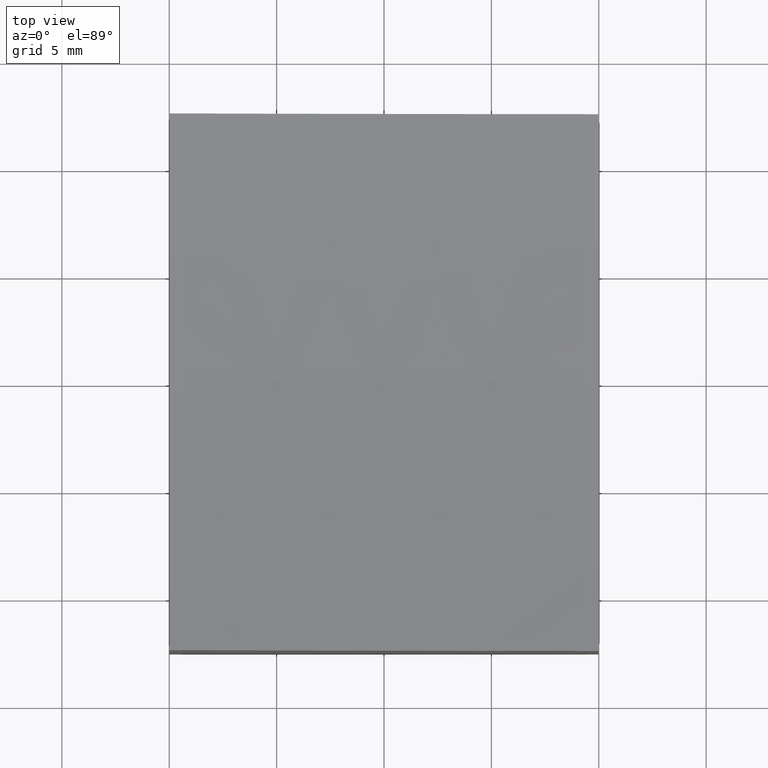
[diagram: clean part render]
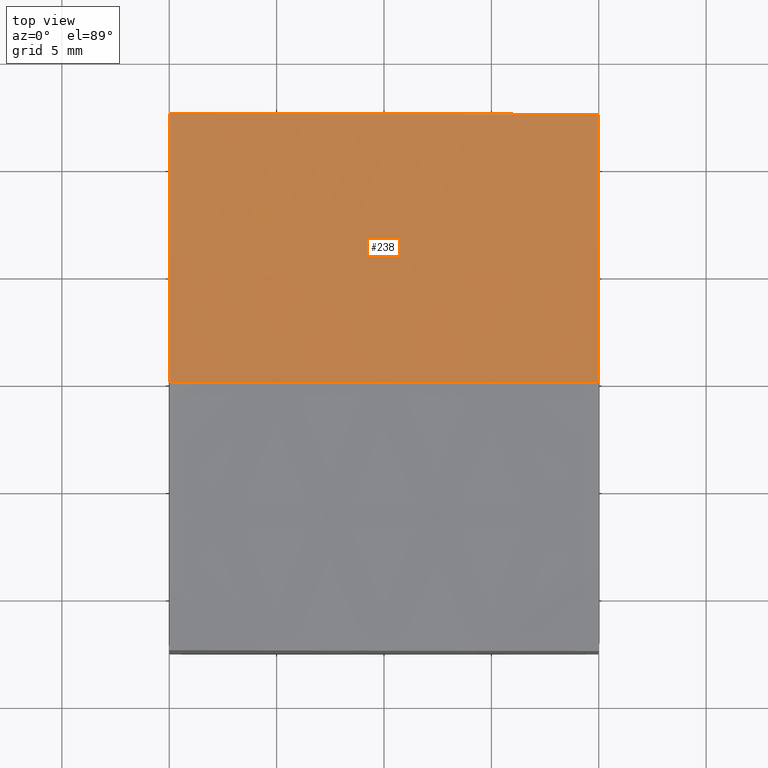
[diagram: same view with one face highlighted and labeled with its STEP entity id]
A machine part, top view. The second image highlights one B-rep face of the part: STEP entity #238.
In plain terms, the highlighted spherical surface has radius 150 mm.
Its self-contained STEP definition (entity closure, byte-faithful):
#15 = DIRECTION ( 'NONE',  ( 1.734723475976807094E-16, -1.000000000000000000, 0.000000000000000000 ) ) ;
#26 = EDGE_LOOP ( 'NONE', ( #246, #91, #72, #104 ) ) ;
#29 = AXIS2_PLACEMENT_3D ( 'NONE', #118, #143, #206 ) ;
#31 = VERTEX_POINT ( 'NONE', #200 ) ;
#33 = CARTESIAN_POINT ( 'NONE',  ( 10.00000000000000178, 0.000000000000000000, 149.0000000000000000 ) ) ;
#39 = DIRECTION ( 'NONE',  ( 0.000000000000000000, 0.000000000000000000, -1.000000000000000000 ) ) ;
#57 = CARTESIAN_POINT ( 'NONE',  ( 10.00000000000000178, 12.50000000000000000, -0.3946116832866386481 ) ) ;
#59 = CARTESIAN_POINT ( 'NONE',  ( -9.999999999999998224, 0.000000000000000000, 149.0000000000000000 ) ) ;
#72 = ORIENTED_EDGE ( 'NONE', *, *, #148, .F. ) ;
#80 = FACE_OUTER_BOUND ( 'NONE', #26, .T. ) ;
#91 = ORIENTED_EDGE ( 'NONE', *, *, #194, .T. ) ;
#96 = AXIS2_PLACEMENT_3D ( 'NONE', #59, #146, #39 ) ;
#103 = EDGE_CURVE ( 'NONE', #174, #176, #191, .T. ) ;
#104 = ORIENTED_EDGE ( 'NONE', *, *, #103, .F. ) ;
#107 = AXIS2_PLACEMENT_3D ( 'NONE', #183, #15, #249 ) ;
#118 = CARTESIAN_POINT ( 'NONE',  ( 15.00000000000001954, 0.000000000000000000, 149.0000000000000000 ) ) ;
#128 = AXIS2_PLACEMENT_3D ( 'NONE', #33, #210, #165 ) ;
#139 = CARTESIAN_POINT ( 'NONE',  ( 15.00000000000001954, 0.000000000000000000, 149.0000000000000000 ) ) ;
#143 = DIRECTION ( 'NONE',  ( 0.000000000000000000, -1.000000000000000000, 0.000000000000000000 ) ) ;
#146 = DIRECTION ( 'NONE',  ( 1.000000000000000000, 0.000000000000000000, 0.000000000000000000 ) ) ;
#148 = EDGE_CURVE ( 'NONE', #176, #31, #190, .T. ) ;
#149 = CIRCLE ( 'NONE', #29, 150.0000000000000284 ) ;
#161 = CARTESIAN_POINT ( 'NONE',  ( -9.999999999999996447, 12.49999999999999645, 1.627173468105036491 ) ) ;
#165 = DIRECTION ( 'NONE',  ( 0.000000000000000000, 0.000000000000000000, 1.000000000000000000 ) ) ;
#166 = DIRECTION ( 'NONE',  ( 0.000000000000000000, 1.000000000000000000, -0.000000000000000000 ) ) ;
#174 = VERTEX_POINT ( 'NONE', #161 ) ;
#176 = VERTEX_POINT ( 'NONE', #57 ) ;
#183 = CARTESIAN_POINT ( 'NONE',  ( 15.00000000000001776, 12.50000000000000178, 149.0000000000000000 ) ) ;
#190 = CIRCLE ( 'NONE', #128, 149.9166435056495175 ) ;
#191 = CIRCLE ( 'NONE', #107, 149.4782592887674753 ) ;
#194 = EDGE_CURVE ( 'NONE', #260, #31, #149, .T. ) ;
#197 = CARTESIAN_POINT ( 'NONE',  ( -9.999999999999998224, 0.000000000000000000, 1.098005422509568119 ) ) ;
#200 = CARTESIAN_POINT ( 'NONE',  ( 10.00000000000000178, 0.000000000000000000, -0.9166435056495170208 ) ) ;
#206 = DIRECTION ( 'NONE',  ( 0.000000000000000000, 0.000000000000000000, -1.000000000000000000 ) ) ;
#210 = DIRECTION ( 'NONE',  ( -1.000000000000000000, 0.000000000000000000, 0.000000000000000000 ) ) ;
#212 = CIRCLE ( 'NONE', #96, 147.9019945774904272 ) ;
#223 = AXIS2_PLACEMENT_3D ( 'NONE', #139, #166, #254 ) ;
#238 = ADVANCED_FACE ( 'NONE', ( #80 ), #277, .F. ) ;
#245 = EDGE_CURVE ( 'NONE', #260, #174, #212, .T. ) ;
#246 = ORIENTED_EDGE ( 'NONE', *, *, #245, .F. ) ;
#249 = DIRECTION ( 'NONE',  ( 1.000000000000000000, 1.740778375628798863E-16, 0.000000000000000000 ) ) ;
#254 = DIRECTION ( 'NONE',  ( -1.000000000000000000, 0.000000000000000000, 0.000000000000000000 ) ) ;
#260 = VERTEX_POINT ( 'NONE', #197 ) ;
#277 = SPHERICAL_SURFACE ( 'NONE', #223, 150.0000000000000284 ) ;